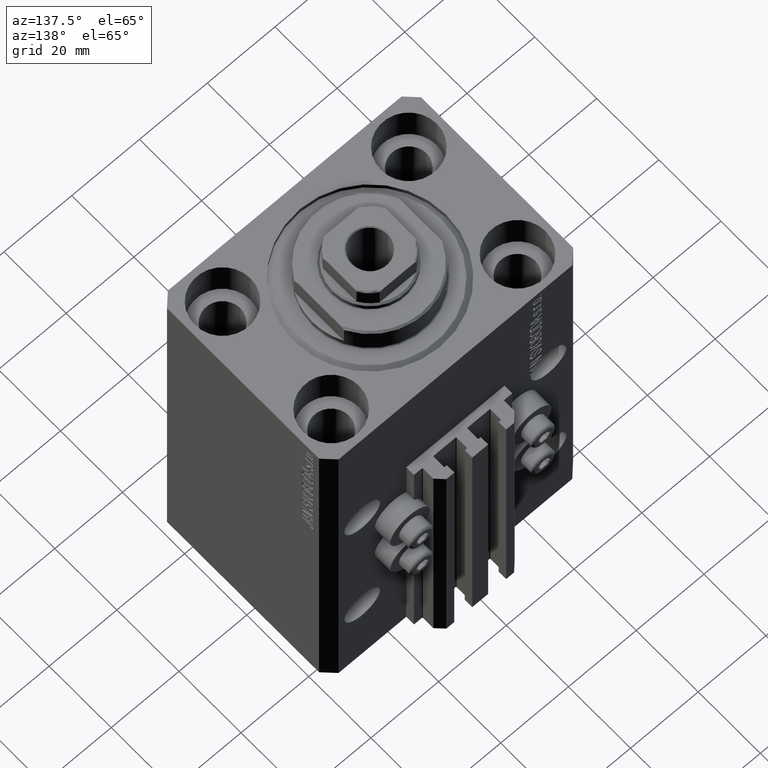
[diagram: clean part render]
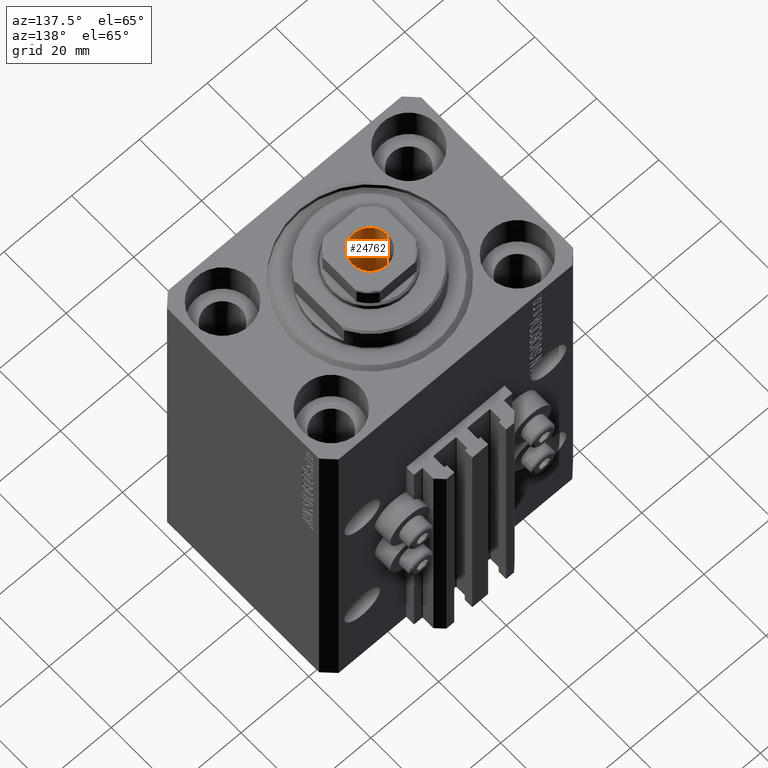
[diagram: same view with one face highlighted and labeled with its STEP entity id]
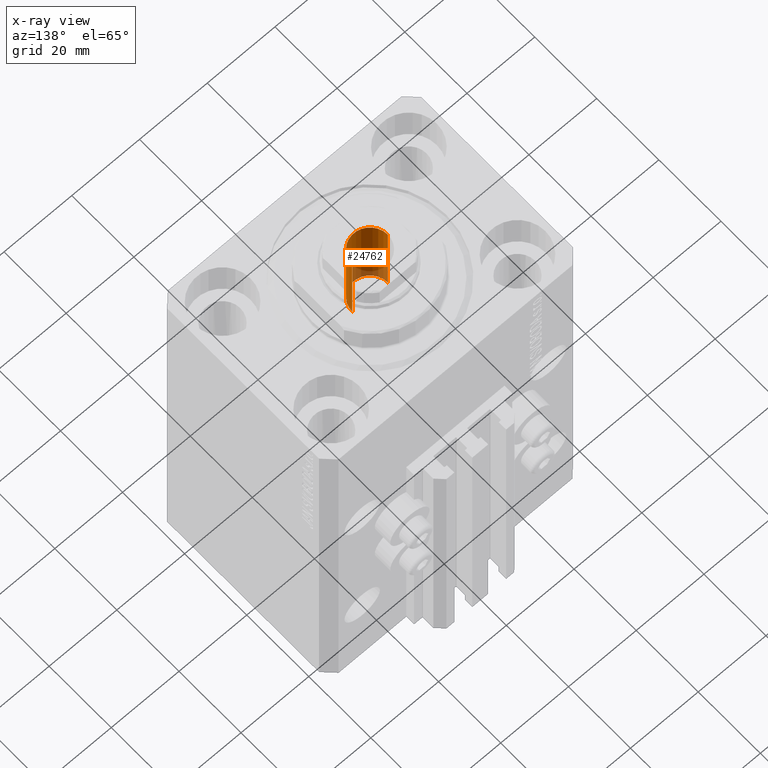
[diagram: x-ray of the same camera — body ghosted, the highlighted face saturated]
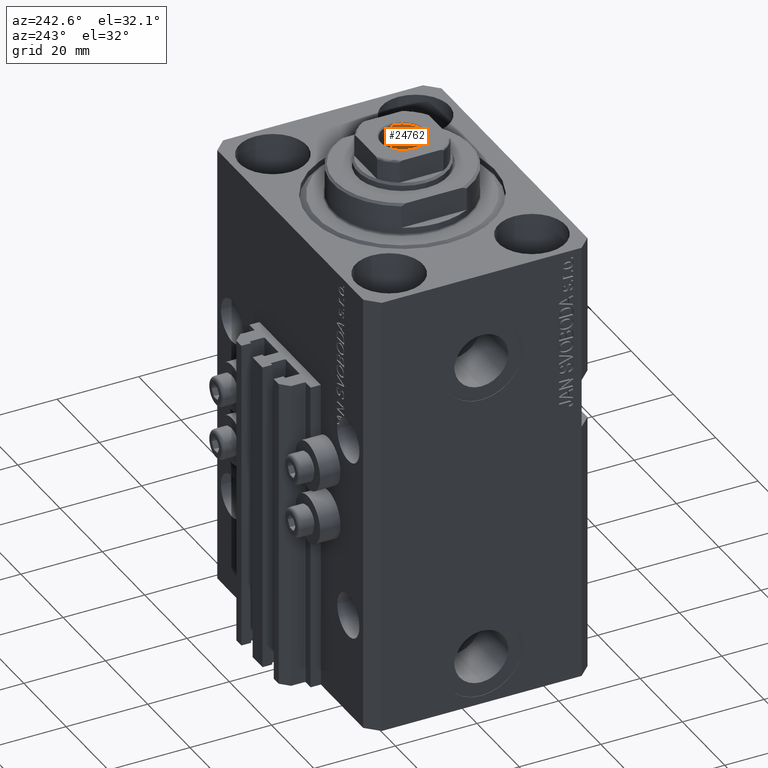
[diagram: same view with one face highlighted and labeled with its STEP entity id]
A machine part, auxiliary view. The second image highlights one B-rep face of the part: STEP entity #24762.
The next image is the same camera in x-ray: the body ghosted, the highlighted face saturated — about 15% of this face is hidden behind the body in this view.
A second angle (auxiliary view) of the same face is appended — the face is thin or edge-on in the first view.
In plain terms, the highlighted cylindrical surface (edge-blend (fillet) strip) has radius 5.25 mm, axis along (0, 0, 1).
Its self-contained STEP definition (entity closure, byte-faithful):
#342 = DIRECTION ( 'NONE',  ( 0.000000000000000000, 0.000000000000000000, 1.000000000000000000 ) ) ;
#1750 = CIRCLE ( 'NONE', #34597, 5.249999999999995559 ) ;
#2478 = CARTESIAN_POINT ( 'NONE',  ( 0.000000000000000000, 0.000000000000000000, 115.1000000000000085 ) ) ;
#2792 = ORIENTED_EDGE ( 'NONE', *, *, #13168, .T. ) ;
#4035 = ORIENTED_EDGE ( 'NONE', *, *, #21036, .F. ) ;
#4095 = CARTESIAN_POINT ( 'NONE',  ( 5.249999999999995559, 0.000000000000000000, 115.1000000000000085 ) ) ;
#4376 = VERTEX_POINT ( 'NONE', #37856 ) ;
#5102 = CARTESIAN_POINT ( 'NONE',  ( -5.249999999999995559, 6.429395695523600208E-16, 115.1000000000000085 ) ) ;
#5431 = CARTESIAN_POINT ( 'NONE',  ( 5.249999999999994671, 0.000000000000000000, 90.10000000000000853 ) ) ;
#6916 = CARTESIAN_POINT ( 'NONE',  ( 0.000000000000000000, 0.000000000000000000, 90.10000000000000853 ) ) ;
#9143 = VECTOR ( 'NONE', #25853, 1000.000000000000000 ) ;
#10651 = CARTESIAN_POINT ( 'NONE',  ( -5.249999999999994671, 6.429395695523597250E-16, 90.10000000000000853 ) ) ;
#12802 = ORIENTED_EDGE ( 'NONE', *, *, #18337, .F. ) ;
#13036 = DIRECTION ( 'NONE',  ( 1.000000000000000000, 0.000000000000000000, 0.000000000000000000 ) ) ;
#13168 = EDGE_CURVE ( 'NONE', #15804, #4376, #37883, .T. ) ;
#13688 = VECTOR ( 'NONE', #16346, 1000.000000000000000 ) ;
#15306 = EDGE_LOOP ( 'NONE', ( #4035, #2792, #34926, #12802 ) ) ;
#15804 = VERTEX_POINT ( 'NONE', #10651 ) ;
#16100 = AXIS2_PLACEMENT_3D ( 'NONE', #6916, #21743, #39219 ) ;
#16346 = DIRECTION ( 'NONE',  ( -0.000000000000000000, -0.000000000000000000, 1.000000000000000000 ) ) ;
#18337 = EDGE_CURVE ( 'NONE', #40820, #21196, #44533, .T. ) ;
#21036 = EDGE_CURVE ( 'NONE', #15804, #40820, #36727, .T. ) ;
#21196 = VERTEX_POINT ( 'NONE', #41823 ) ;
#21743 = DIRECTION ( 'NONE',  ( -0.000000000000000000, -0.000000000000000000, 1.000000000000000000 ) ) ;
#24479 = FACE_OUTER_BOUND ( 'NONE', #15306, .T. ) ;
#24762 = ADVANCED_FACE ( 'NONE', ( #24479 ), #42229, .F. ) ;
#25853 = DIRECTION ( 'NONE',  ( -0.000000000000000000, -0.000000000000000000, 1.000000000000000000 ) ) ;
#29520 = DIRECTION ( 'NONE',  ( 1.000000000000000000, 0.000000000000000000, 0.000000000000000000 ) ) ;
#29562 = EDGE_CURVE ( 'NONE', #4376, #21196, #1750, .T. ) ;
#31665 = DIRECTION ( 'NONE',  ( -0.000000000000000000, -0.000000000000000000, 1.000000000000000000 ) ) ;
#34597 = AXIS2_PLACEMENT_3D ( 'NONE', #47051, #342, #29520 ) ;
#34926 = ORIENTED_EDGE ( 'NONE', *, *, #29562, .T. ) ;
#35324 = AXIS2_PLACEMENT_3D ( 'NONE', #2478, #31665, #13036 ) ;
#36727 = CIRCLE ( 'NONE', #16100, 5.249999999999994671 ) ;
#37856 = CARTESIAN_POINT ( 'NONE',  ( -5.249999999999995559, 6.429395695523600208E-16, 114.8000000000000114 ) ) ;
#37883 = LINE ( 'NONE', #5102, #13688 ) ;
#39219 = DIRECTION ( 'NONE',  ( 1.000000000000000000, 0.000000000000000000, 0.000000000000000000 ) ) ;
#40820 = VERTEX_POINT ( 'NONE', #5431 ) ;
#41823 = CARTESIAN_POINT ( 'NONE',  ( 5.249999999999995559, 0.000000000000000000, 114.8000000000000114 ) ) ;
#42229 = CYLINDRICAL_SURFACE ( 'NONE', #35324, 5.249999999999995559 ) ;
#44533 = LINE ( 'NONE', #4095, #9143 ) ;
#47051 = CARTESIAN_POINT ( 'NONE',  ( 0.000000000000000000, 0.000000000000000000, 114.8000000000000114 ) ) ;